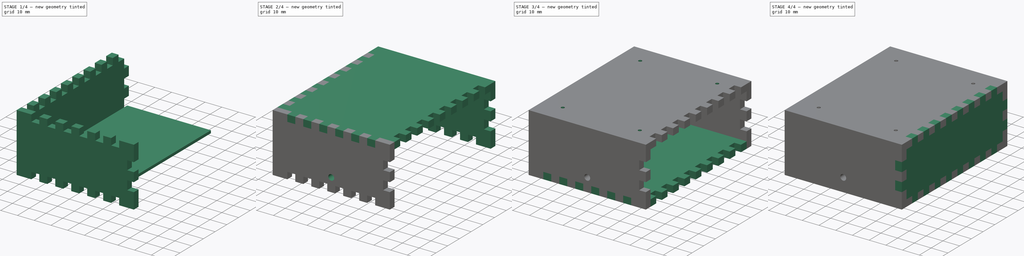
[diagram: build sequence overview — one tinted view per stage of 4, left to right]
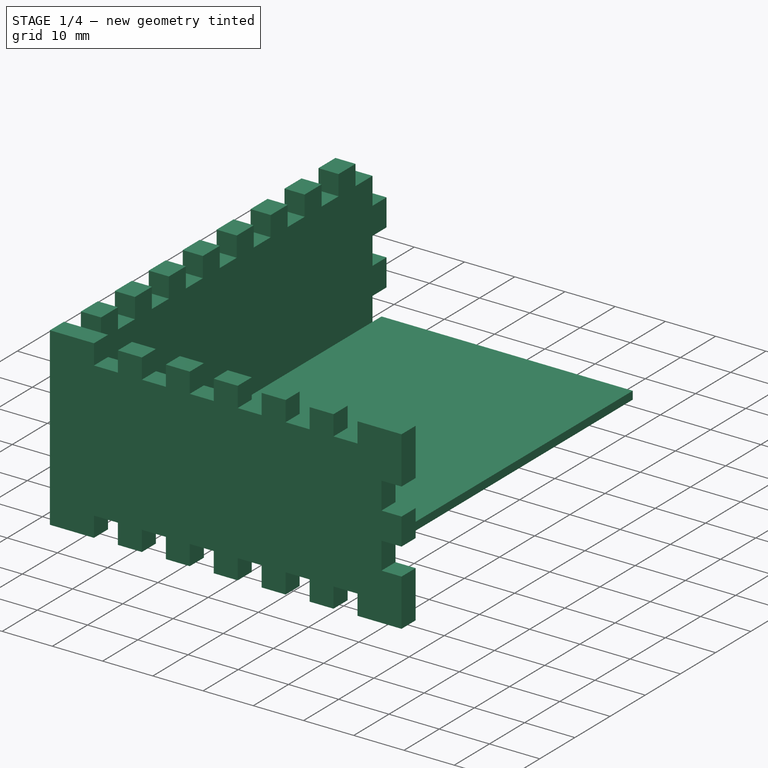
[diagram: stage 1 of 4 — iso view after this stage's code; geometry added in this stage tinted green]
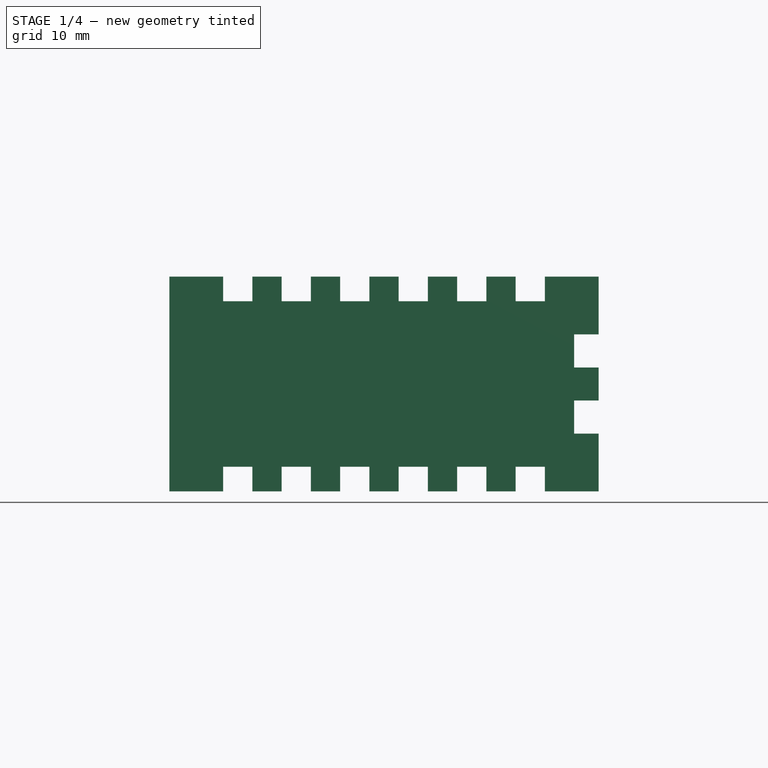
[diagram: stage 1 of 4 — front view after this stage's code; geometry added in this stage tinted green]
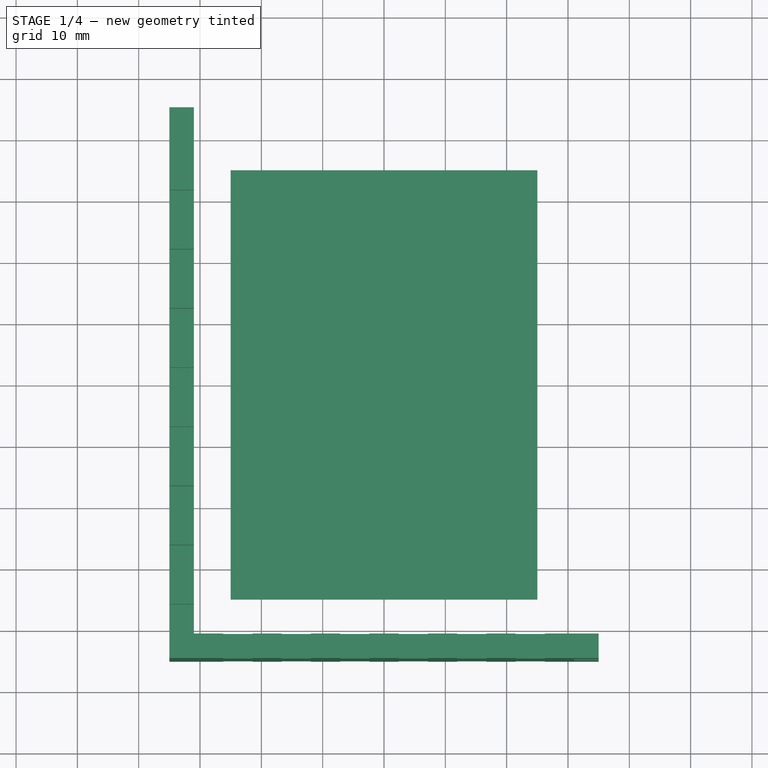
[diagram: stage 1 of 4 — top view after this stage's code; geometry added in this stage tinted green]
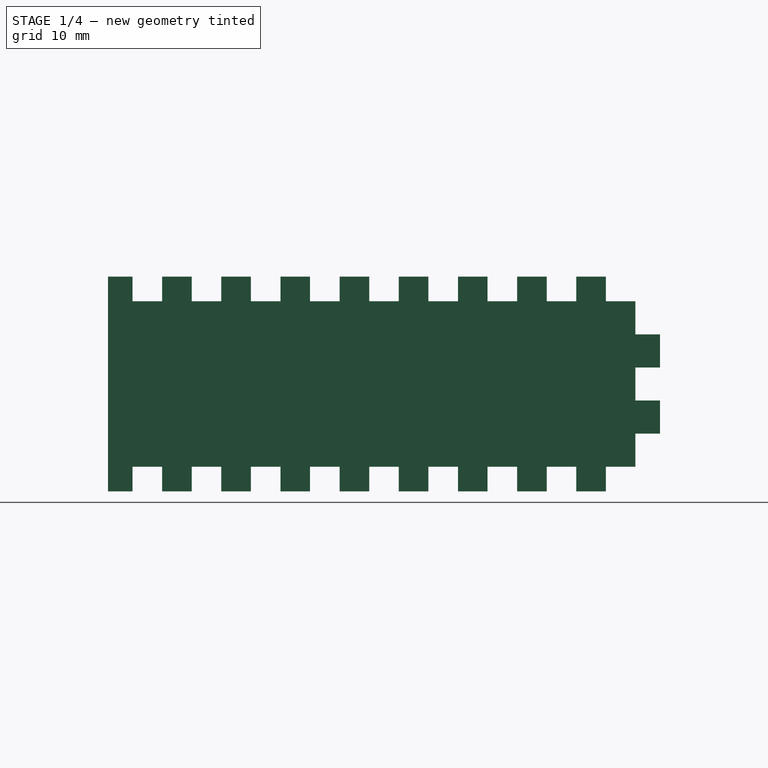
[diagram: stage 1 of 4 — right view after this stage's code; geometry added in this stage tinted green]
FCSTD DOCUMENT  (FreeCAD 0.16R)
Label: box
License: All rights reserved
LicenseURL: http://en.wikipedia.org/wiki/All_rights_reserved
objects: Part::Feature×6, Part::Extrusion×6, Part::Part2DObjectPython×6, Sketcher::SketchObject×5, PartDesign::Pocket×4, App::DocumentObjectGroup×3, PartDesign::Pad×1
note: 33 computed .brp shape members not serialized (recipe doc carries the construction recipe); baked Part::Feature solids carry a one-line shape summary decoded from their .brp

FEATURE [Sketcher::SketchObject] Sketch  label="PcbSketch"
  Placement = pos=(0,0,-9.5) rot=(0,0,1;0rad)
  expr: Placement.Base.z = <<Bottom Part>>.Placement.Base.z + 4mm
  sketch-geometry (4):
    g0: LineSegment StartX=-25 StartY=35 StartZ=0 EndX=25 EndY=35 EndZ=0
    g1: LineSegment StartX=25 StartY=35 StartZ=0 EndX=25 EndY=-35 EndZ=0
    g2: LineSegment StartX=25 StartY=-35 StartZ=0 EndX=-25 EndY=-35 EndZ=0
    g3: LineSegment StartX=-25 StartY=-35 StartZ=0 EndX=-25 EndY=35 EndZ=0
  constraints (12):
    c: Coincident(g0,g1)
    c: Coincident(g1,g2)
    c: Coincident(g2,g3)
    c: Coincident(g3,g0)
    c: Horizontal(g0)
    c: Horizontal(g2)
    c: Vertical(g1)
    c: Vertical(g3)
    c: Symmetric(g2,g1,g-2)
    c: Symmetric(g0,g1,g-1)
    c: DistanceX(g2,g2) = 50  'X'
    c: DistanceY(g1,g1) = 70  'Y'
FEATURE [PartDesign::Pad] Pad  label="PcbBase"
  Length = 1.6
  Length2 = 100
  Placement = pos=(0,0,-9.5) rot=(0,0,1;0rad)
  Sketch = -> Sketch
  Type = 0
FEATURE [Part::Extrusion] Front_Extrude  label="Front Extrude"
  Base = -> Front_Part
  Dir = (0,-4,0)
  Solid = true
FEATURE [App::DocumentObjectGroup] Gruppe  label="Support"
  Group = -> [Top_Extrude,Bottom_Extrude,Front_Extrude]
FEATURE [Part::Extrusion] Left_Extrude  label="Left Extrude"
  Base = -> Left_Part
  Dir = (-4,0,0)
  Solid = true
FEATURE [App::DocumentObjectGroup] Box
  Group = -> [Right_Extrude,Back_Extrude,Left_Extrude,Pocket002,Pocket,Pocket003]
FEATURE [Part::Part2DObjectPython] Shape2DView  label="Right View"  # Draft 2D object (typed FeaturePython)
  Base = -> Right_Extrude
  HiddenLines = false
  Placement = pos=(162.5,0,0) rot=(0,0,1;0rad)
  Projection = (1,0,0)
  ProjectionMode = 0
  SegmentLength = 0.05
  Tessellation = false
FEATURE [Part::Part2DObjectPython] Shape2DView001  label="Bottom View"  # Draft 2D object (typed FeaturePython)
  Base = -> Pocket
  HiddenLines = false
  Placement = pos=(305,0,0) rot=(0,0,1;0rad)
  Projection = (0,0,1)
  ProjectionMode = 0
  SegmentLength = 0.05
  Tessellation = false
FEATURE [Part::Part2DObjectPython] Shape2DView002  label="Top View"  # Draft 2D object (typed FeaturePython)
  Base = -> Pocket003
  HiddenLines = false
  Placement = pos=(225,0,0) rot=(0,0,1;0rad)
  Projection = (0,0,1)
  ProjectionMode = 0
  SegmentLength = 0.05
  Tessellation = false
FEATURE [Part::Part2DObjectPython] Shape2DView003  label="Back View"  # Draft 2D object (typed FeaturePython)
  Base = -> Back_Extrude
  HiddenLines = false
  Placement = pos=(72.5,0,0) rot=(0,0,1;0rad)
  Projection = (0,1,0)
  ProjectionMode = 0
  SegmentLength = 0.05
  Tessellation = false
FEATURE [Part::Part2DObjectPython] Shape2DView004  label="Front View"  # Draft 2D object (typed FeaturePython)
  Base = -> Pocket002
  HiddenLines = false
  Placement = pos=(27.5,0,0) rot=(0,0,1;0rad)
  Projection = (0,1,0)
  ProjectionMode = 0
  SegmentLength = 0.05
  Tessellation = false
FEATURE [Part::Part2DObjectPython] Shape2DView005  label="Left View"  # Draft 2D object (typed FeaturePython)
  Base = -> Left_Extrude
  HiddenLines = false
  Placement = pos=(117.5,0,0) rot=(0,0,1;0rad)
  Projection = (1,0,0)
  ProjectionMode = 0
  SegmentLength = 0.05
  Tessellation = false
FEATURE [App::DocumentObjectGroup] Views
  Group = -> [Shape2DView004,Shape2DView003,Shape2DView005,Shape2DView,Shape2DView002,Shape2DView001]
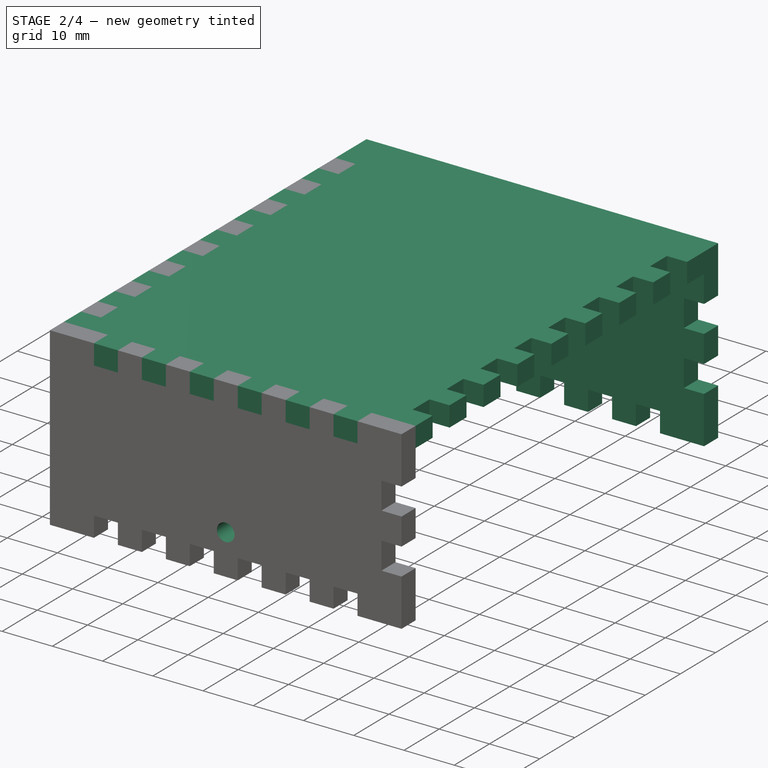
[diagram: stage 2 of 4 — iso view after this stage's code; geometry added in this stage tinted green]
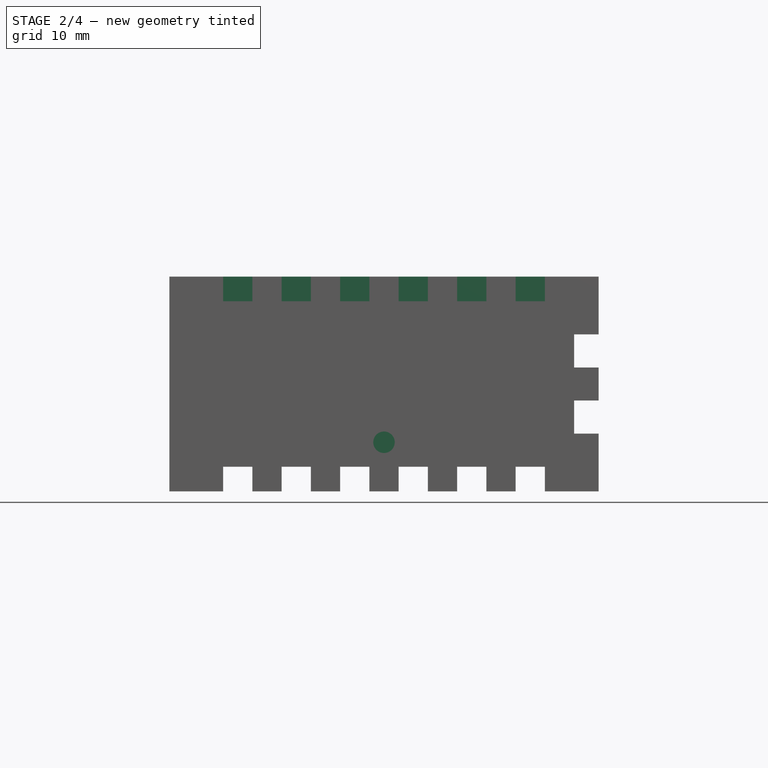
[diagram: stage 2 of 4 — front view after this stage's code; geometry added in this stage tinted green]
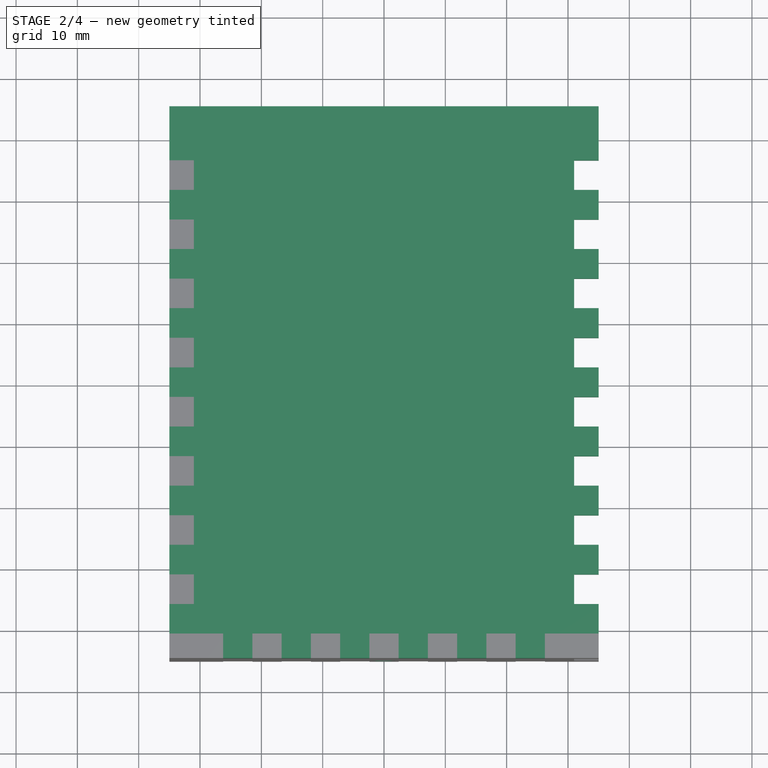
[diagram: stage 2 of 4 — top view after this stage's code; geometry added in this stage tinted green]
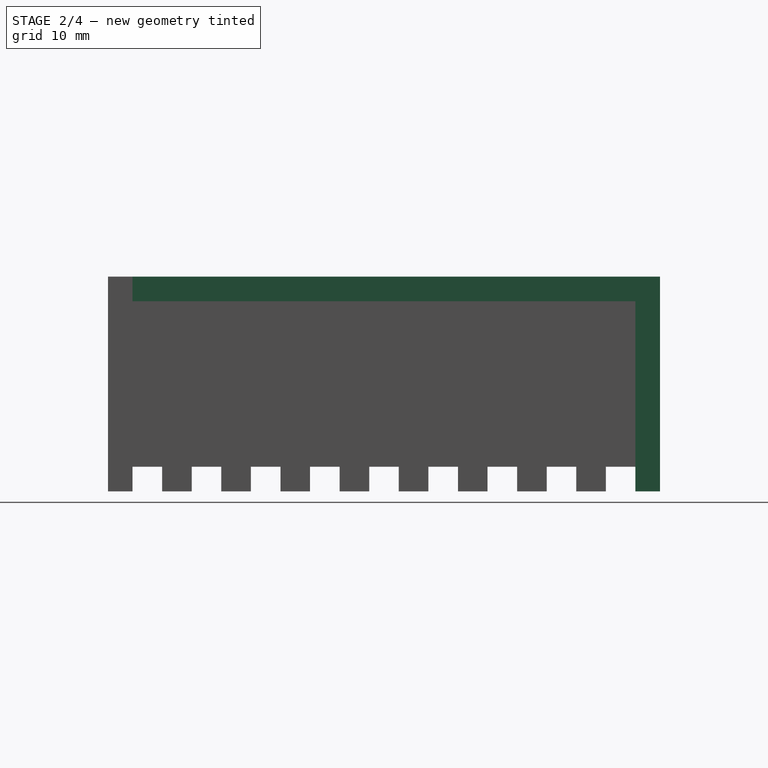
[diagram: stage 2 of 4 — right view after this stage's code; geometry added in this stage tinted green]
FEATURE [Part::Extrusion] Top_Extrude  label="Top Extrude"
  Base = -> Top_Part
  Dir = (0,0,4)
  Solid = true
FEATURE [Part::Extrusion] Back_Extrude  label="Back Extrude"
  Base = -> Back_Part
  Dir = (0,4,0)
  Solid = true
FEATURE [Sketcher::SketchObject] Sketch003  label="FrontHoleSketch"
  Placement = pos=(0,-45,0) rot=(1,0,0;1.5708rad)
  Support = -> Front_Extrude [Face78]
  expr: Constraints[4] = 3.5 / 2
  expr: Constraints[3] = -PcbSketch.Placement.Base.z - PcbBase.Length
  expr: Constraints[2] = PcbSketch.Constraints.X
  sketch-geometry (2):
    g0: LineSegment [constr] StartX=-25 StartY=-7.9 StartZ=0 EndX=25 EndY=-7.9 EndZ=0
    g1: Circle CenterX=0 CenterY=-9.5 CenterZ=0 NormalX=0 NormalY=0 NormalZ=1 Radius=1.75
  constraints (7):
    c: Horizontal(g0)
    c: Symmetric(g0,g0,g-2)
    c: DistanceX(g0,g0) = 50
    c: DistanceY(g0,g-1) = 7.9
    c: Radius(g1) = 1.75
    c: PointOnObject(g1,g-2)
    c: DistanceY(g1,g-1) = 9.5
FEATURE [PartDesign::Pocket] Pocket002  label="Front"
  Length = 5
  Sketch = -> Sketch003
  Type = 1
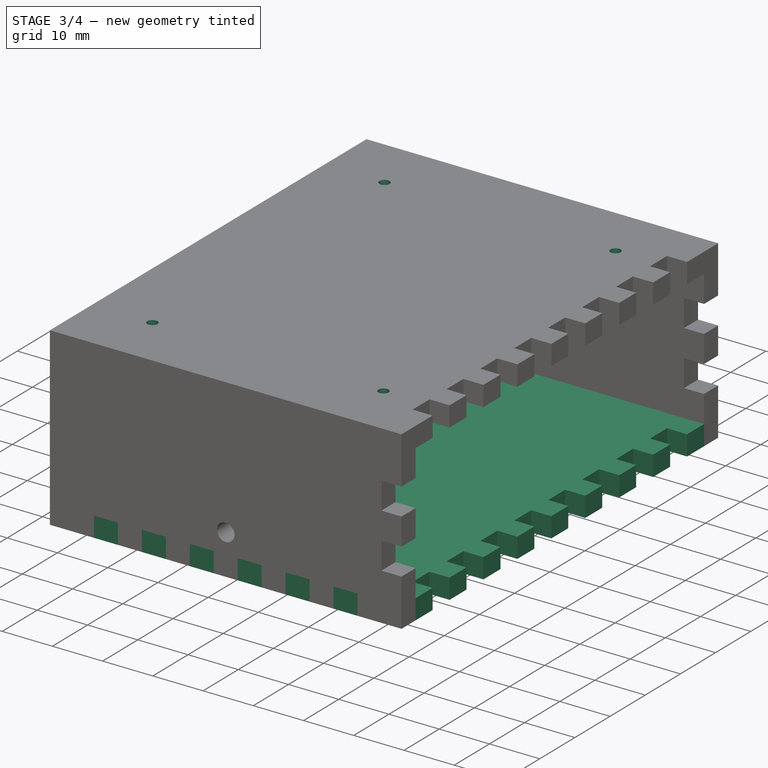
[diagram: stage 3 of 4 — iso view after this stage's code; geometry added in this stage tinted green]
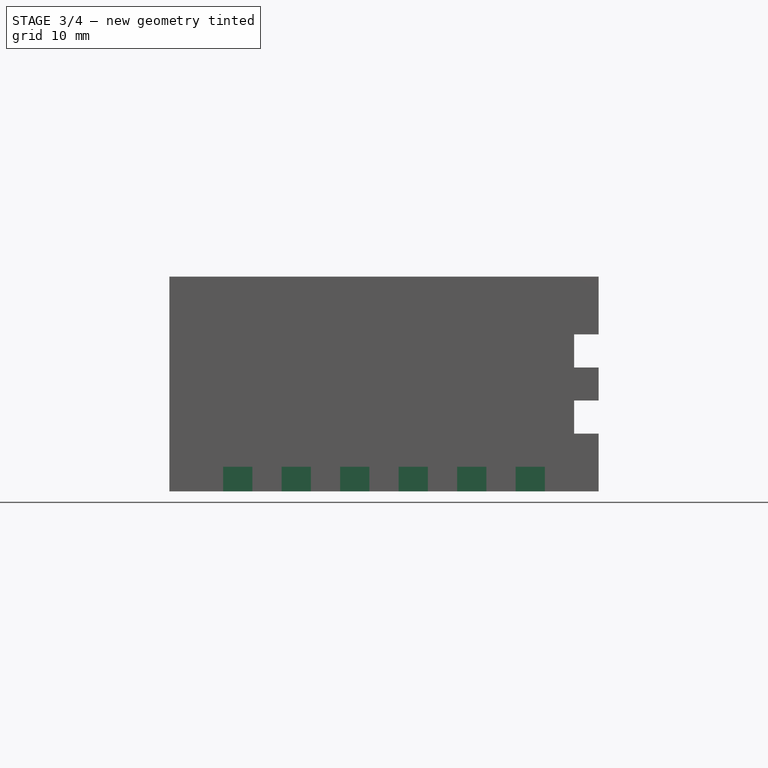
[diagram: stage 3 of 4 — front view after this stage's code; geometry added in this stage tinted green]
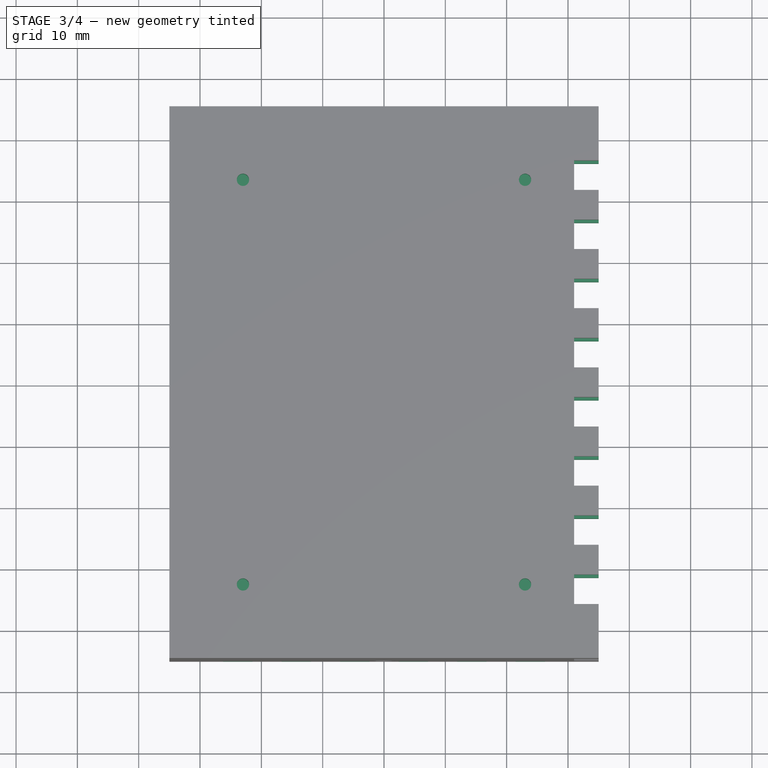
[diagram: stage 3 of 4 — top view after this stage's code; geometry added in this stage tinted green]
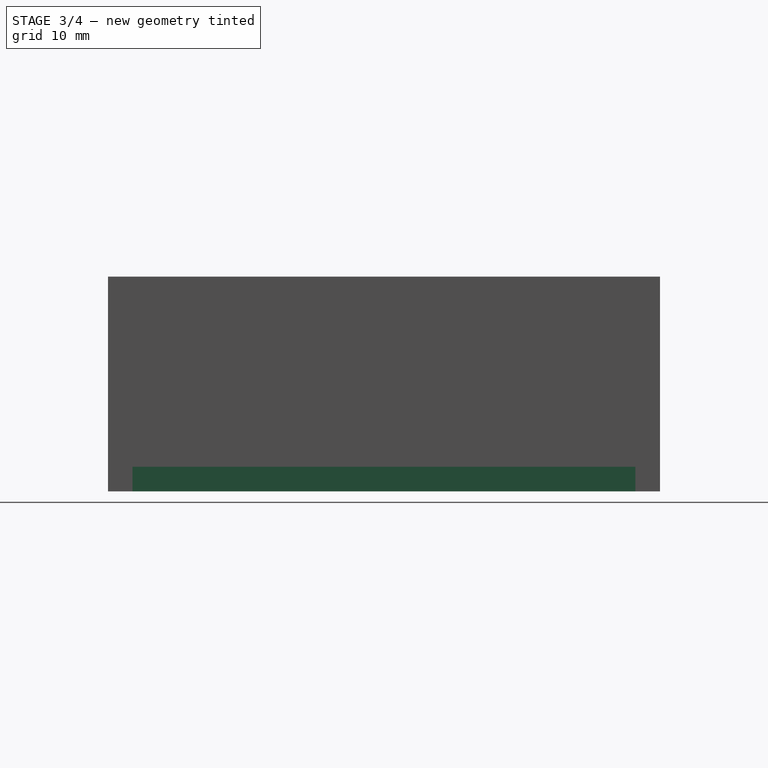
[diagram: stage 3 of 4 — right view after this stage's code; geometry added in this stage tinted green]
FEATURE [Part::Extrusion] Bottom_Extrude  label="Bottom Extrude"
  Base = -> Bottom_Part
  Dir = (0,0,-4)
  Solid = true
FEATURE [Sketcher::SketchObject] Sketch004  label="TopHolesSketch"
  Placement = pos=(0,0,17.5) rot=(0,0,1;0rad)
  Support = -> Top_Extrude [Face122]
  expr: Constraints[19] = PcbHoles.Constraints.HoleY
  expr: Constraints[18] = PcbHoles.Constraints.HoleX
  expr: Constraints[15] = PcbSketch001.Constraints.R
  sketch-geometry (8):
    g0: LineSegment [constr] StartX=-23 StartY=33 StartZ=0 EndX=23 EndY=33 EndZ=0
    g1: LineSegment [constr] StartX=23 StartY=33 StartZ=0 EndX=23 EndY=-33 EndZ=0
    g2: LineSegment [constr] StartX=23 StartY=-33 StartZ=0 EndX=-23 EndY=-33 EndZ=0
    g3: LineSegment [constr] StartX=-23 StartY=-33 StartZ=0 EndX=-23 EndY=33 EndZ=0
    g4: Circle CenterX=-23 CenterY=33 CenterZ=0 NormalX=0 NormalY=0 NormalZ=1 Radius=1
    g5: Circle CenterX=23 CenterY=33 CenterZ=0 NormalX=0 NormalY=0 NormalZ=1 Radius=1
    g6: Circle CenterX=-23 CenterY=-33 CenterZ=0 NormalX=0 NormalY=0 NormalZ=1 Radius=1
    g7: Circle CenterX=23 CenterY=-33 CenterZ=0 NormalX=0 NormalY=0 NormalZ=1 Radius=1
  constraints (20):
    c: Coincident(g0,g1)
    c: Coincident(g1,g2)
    c: Coincident(g2,g3)
    c: Coincident(g3,g0)
    c: Horizontal(g0)
    c: Horizontal(g2)
    c: Vertical(g1)
    c: Vertical(g3)
    c: Coincident(g4,g0)
    c: Coincident(g5,g0)
    c: Coincident(g6,g2)
    c: Coincident(g7,g1)
    c: Equal(g7,g6)
    c: Equal(g6,g5)
    c: Equal(g5,g4)
    c: Radius(g4) = 1
    c: Symmetric(g0,g0,g-2)
    c: Symmetric(g0,g1,g-1)
    c: DistanceX(g2,g2) = 46
    c: DistanceY(g1,g1) = 66
FEATURE [PartDesign::Pocket] Pocket003  label="Top"
  Length = 5
  Sketch = -> Sketch004
  Type = 1
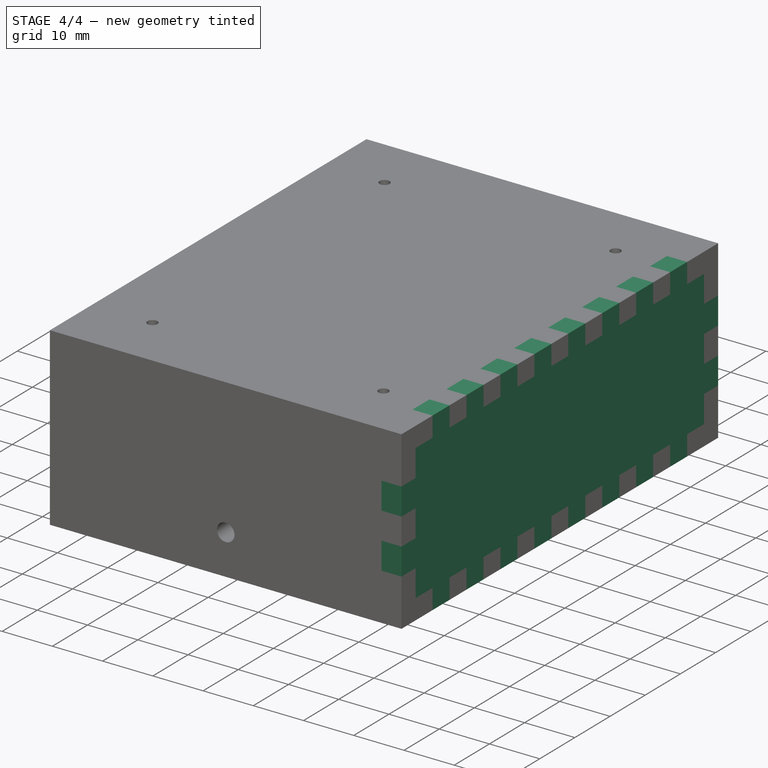
[diagram: stage 4 of 4 — iso view after this stage's code; geometry added in this stage tinted green]
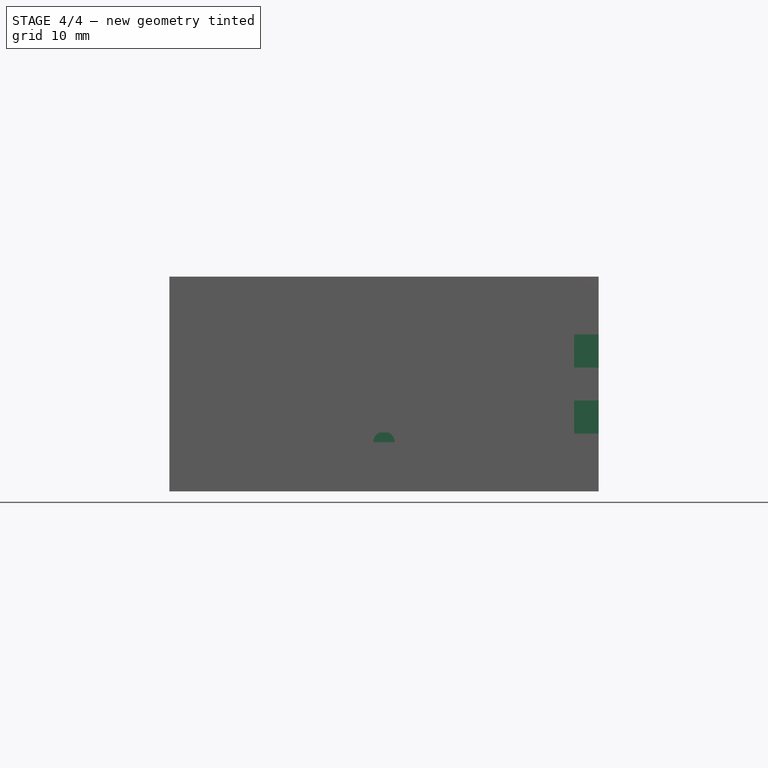
[diagram: stage 4 of 4 — front view after this stage's code; geometry added in this stage tinted green]
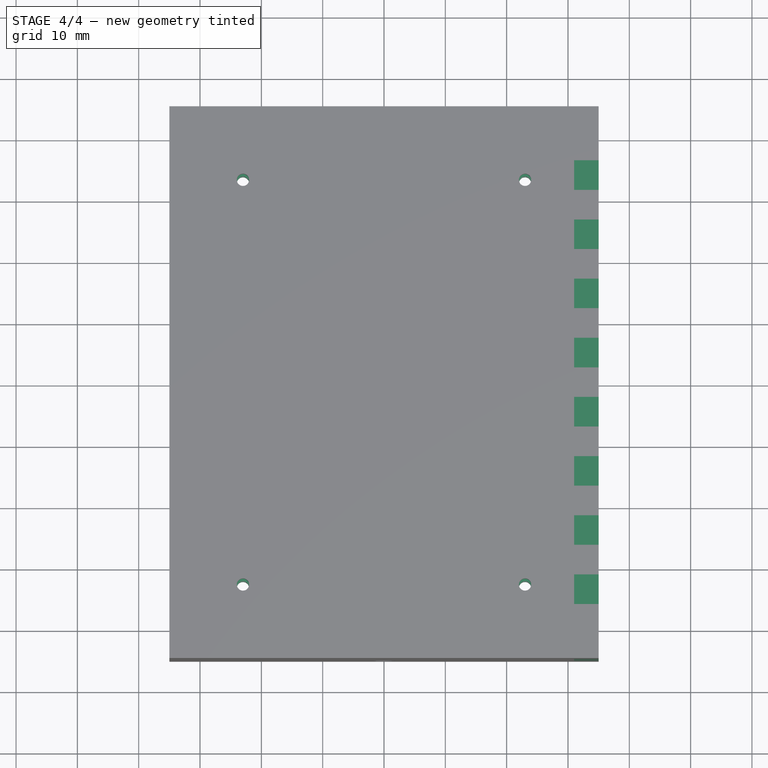
[diagram: stage 4 of 4 — top view after this stage's code; geometry added in this stage tinted green]
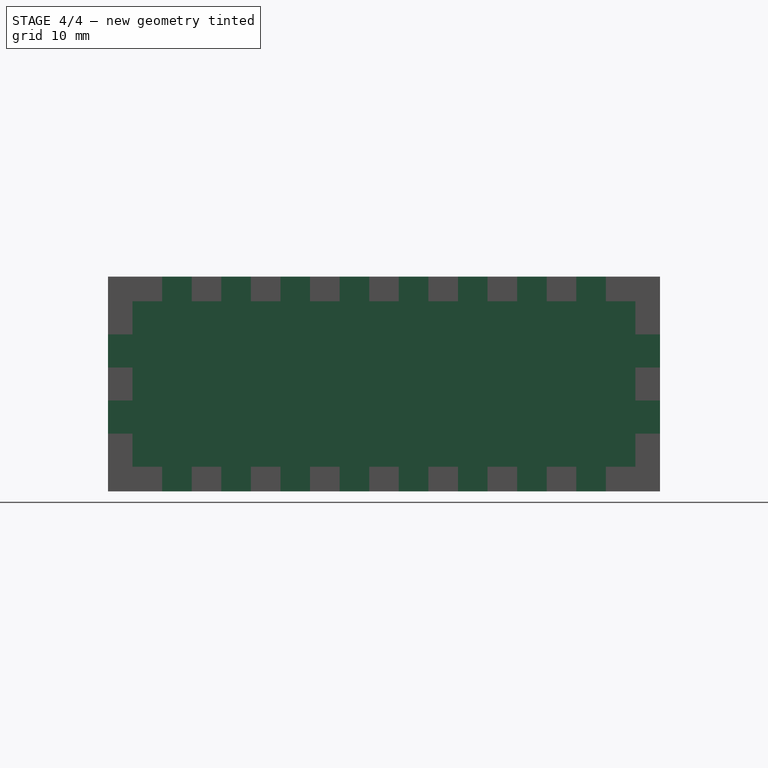
[diagram: stage 4 of 4 — right view after this stage's code; geometry added in this stage tinted green]
FEATURE [Sketcher::SketchObject] Sketch002  label="PcbHoles"
  Placement = pos=(0,0,-7.9) rot=(0,0,1;0rad)
  Support = -> Pad [Face6]
  expr: Constraints.HoleY = PcbSketch.Constraints.Y - 2 * 1 - 2 * Constraints.R
  expr: Constraints.HoleX = PcbSketch.Constraints.X - 2 * 1 - 2 * Constraints.R
  sketch-geometry (8):
    g0: Circle CenterX=-23 CenterY=33 CenterZ=0 NormalX=0 NormalY=0 NormalZ=1 Radius=1
    g1: Circle CenterX=23 CenterY=33 CenterZ=0 NormalX=0 NormalY=0 NormalZ=1 Radius=1
    g2: Circle CenterX=23 CenterY=-33 CenterZ=0 NormalX=0 NormalY=0 NormalZ=1 Radius=1
    g3: Circle CenterX=-23 CenterY=-33 CenterZ=0 NormalX=0 NormalY=0 NormalZ=1 Radius=1
    g4: LineSegment [constr] StartX=-23 StartY=33 StartZ=0 EndX=23 EndY=33 EndZ=0
    g5: LineSegment [constr] StartX=23 StartY=33 StartZ=0 EndX=23 EndY=-33 EndZ=0
    g6: LineSegment [constr] StartX=23 StartY=-33 StartZ=0 EndX=-23 EndY=-33 EndZ=0
    g7: LineSegment [constr] StartX=-23 StartY=-33 StartZ=0 EndX=-23 EndY=33 EndZ=0
  constraints (20):
    c: Equal(g3,g2)  'Constraint12'
    c: Equal(g2,g1)  'Constraint11'
    c: Equal(g1,g0)  'Constraint10'
    c: Radius(g0) = 1  'R'
    c: Coincident(g4,g5)  'Constraint15'
    c: Coincident(g5,g6)  'Constraint14'
    c: Coincident(g6,g7)  'Constraint13'
    c: Coincident(g7,g4)  'Constraint8'
    c: Horizontal(g4)
    c: Horizontal(g6)
    c: Vertical(g5)
    c: Vertical(g7)
    c: Coincident(g4,g0)
    c: Coincident(g5,g2)
    c: Coincident(g3,g6)
    c: Coincident(g1,g4)
    c: DistanceX(g6,g6) = 46  'HoleX'
    c: Symmetric(g3,g2,g-2)
    c: Symmetric(g1,g2,g-1)
    c: DistanceY(g5,g5) = 66  'HoleY'
FEATURE [PartDesign::Pocket] Pocket001  label="Pcb"
  Length = 5
  Placement = pos=(0,0,-9.5) rot=(0,0,1;0rad)
  Sketch = -> Sketch002
  Type = 1
FEATURE [Part::Feature] Front_Part  label="Front Part"
  Placement = pos=(-31,-41,13.5) rot=(1,0,0;1.5708rad)
  shape: bbox 70 x 2e-07 x 35 mm, 0 faces, 0 solids (baked)
FEATURE [Part::Feature] Back_Part  label="Back Part"
  Placement = pos=(31,41,13.5) rot=(0,0.707107,0.707107;3.14159rad)
  shape: bbox 70 x 2e-07 x 35 mm, 0 faces, 0 solids (baked)
FEATURE [Part::Feature] Left_Part  label="Left Part"
  Placement = pos=(-31,-41,13.5) rot=(0.57735,0.57735,0.57735;2.0944rad)
  shape: bbox 2e-07 x 90 x 35 mm, 0 faces, 0 solids (baked)
FEATURE [Part::Feature] Right_Part  label="Right Part"
  Placement = pos=(31,-41,13.5) rot=(0.57735,0.57735,0.57735;2.0944rad)
  shape: bbox 2e-07 x 90 x 35 mm, 0 faces, 0 solids (baked)
FEATURE [Part::Feature] Top_Part  label="Top Part"
  Placement = pos=(-31,41,13.5) rot=(0,0,1;0rad)
  shape: bbox 70 x 90 x 2e-07 mm, 0 faces, 0 solids (baked)
FEATURE [Part::Feature] Bottom_Part  label="Bottom Part"
  Placement = pos=(-31,-41,-13.5) rot=(1,0,0;3.14159rad)
  shape: bbox 70 x 90 x 2e-07 mm, 0 faces, 0 solids (baked)
FEATURE [Part::Extrusion] Right_Extrude  label="Right Extrude"
  Base = -> Right_Part
  Dir = (4,0,0)
  Solid = true
FEATURE [Sketcher::SketchObject] Sketch001  label="BottomHolesSketch"
  Placement = pos=(0,0,-17.5) rot=(1,0,0;3.14159rad)
  Support = -> Bottom_Extrude [Face122]
  expr: Constraints[19] = PcbHoles.Constraints.HoleY
  expr: Constraints[18] = PcbHoles.Constraints.HoleX
  expr: Constraints[15] = PcbSketch001.Constraints.R
  sketch-geometry (8):
    g0: LineSegment [constr] StartX=-23 StartY=33 StartZ=0 EndX=23 EndY=33 EndZ=0
    g1: LineSegment [constr] StartX=23 StartY=33 StartZ=0 EndX=23 EndY=-33 EndZ=0
    g2: LineSegment [constr] StartX=23 StartY=-33 StartZ=0 EndX=-23 EndY=-33 EndZ=0
    g3: LineSegment [constr] StartX=-23 StartY=-33 StartZ=0 EndX=-23 EndY=33 EndZ=0
    g4: Circle CenterX=-23 CenterY=33 CenterZ=0 NormalX=0 NormalY=0 NormalZ=1 Radius=1
    g5: Circle CenterX=23 CenterY=33 CenterZ=0 NormalX=0 NormalY=0 NormalZ=1 Radius=1
    g6: Circle CenterX=-23 CenterY=-33 CenterZ=0 NormalX=0 NormalY=0 NormalZ=1 Radius=1
    g7: Circle CenterX=23 CenterY=-33 CenterZ=0 NormalX=0 NormalY=0 NormalZ=1 Radius=1
  constraints (20):
    c: Coincident(g0,g1)
    c: Coincident(g1,g2)
    c: Coincident(g2,g3)
    c: Coincident(g3,g0)
    c: Horizontal(g0)
    c: Horizontal(g2)
    c: Vertical(g1)
    c: Vertical(g3)
    c: Coincident(g4,g0)
    c: Coincident(g5,g0)
    c: Coincident(g6,g2)
    c: Coincident(g7,g1)
    c: Equal(g7,g6)
    c: Equal(g6,g5)
    c: Equal(g5,g4)
    c: Radius(g4) = 1
    c: Symmetric(g0,g0,g-2)
    c: Symmetric(g0,g1,g-1)
    c: DistanceX(g2,g2) = 46
    c: DistanceY(g1,g1) = 66
FEATURE [PartDesign::Pocket] Pocket  label="Bottom"
  Length = 5
  Sketch = -> Sketch001
  Type = 1
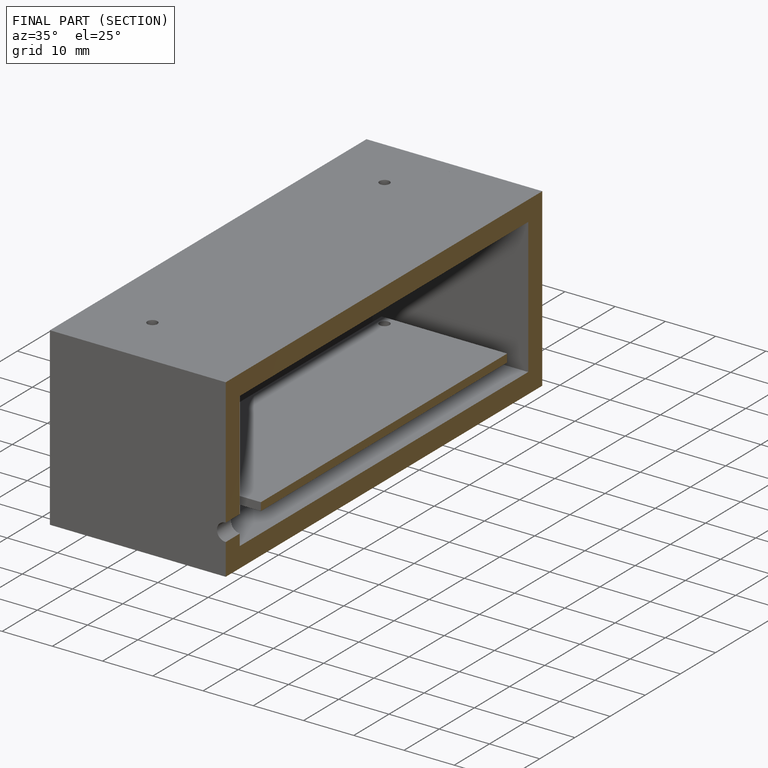
[diagram: finished part — half-section view (interior)]
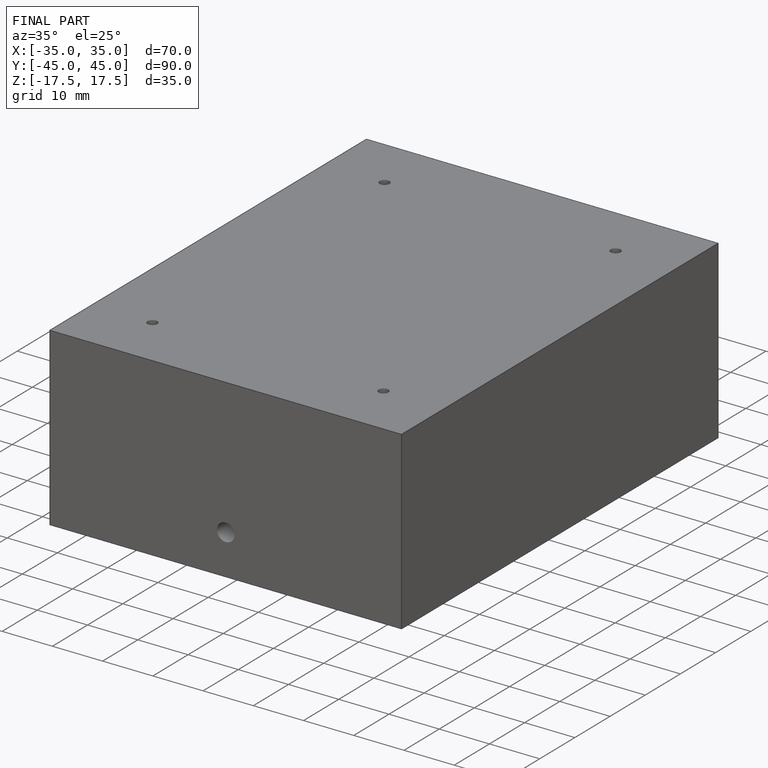
[diagram: finished part — iso view with bounding-box wireframe]
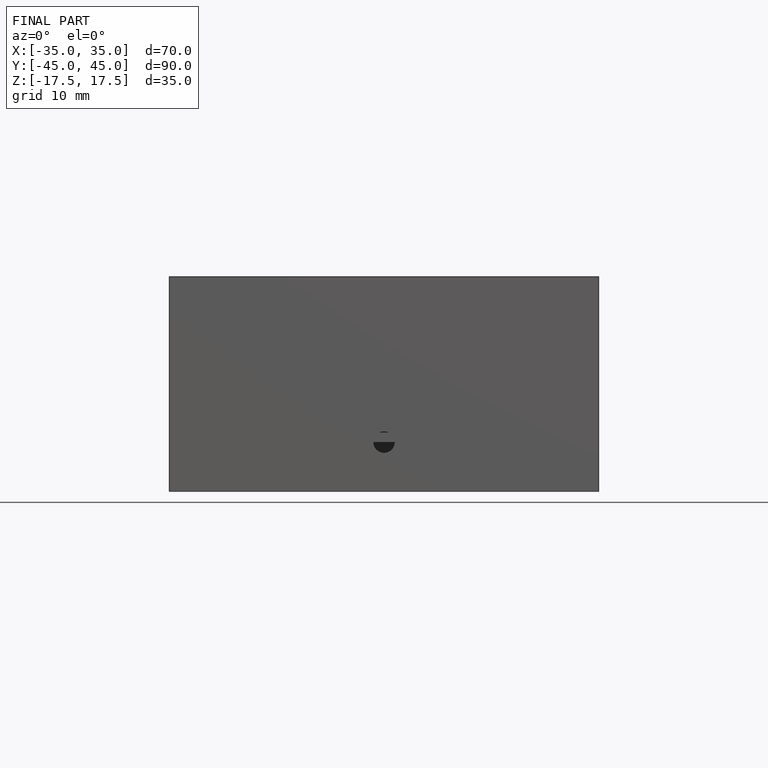
[diagram: finished part — front view with bounding-box wireframe]
